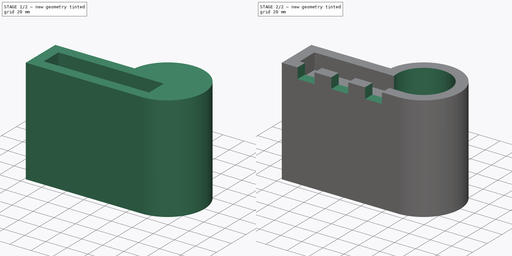
[diagram: build sequence overview — one tinted view per stage of 2, left to right]
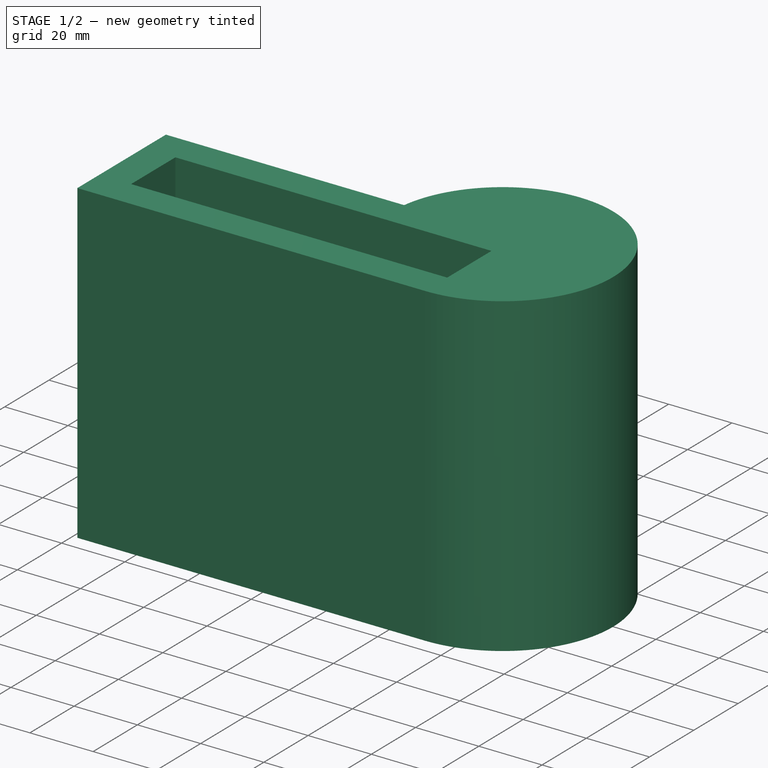
[diagram: stage 1 of 2 — iso view after this stage's code; geometry added in this stage tinted green]
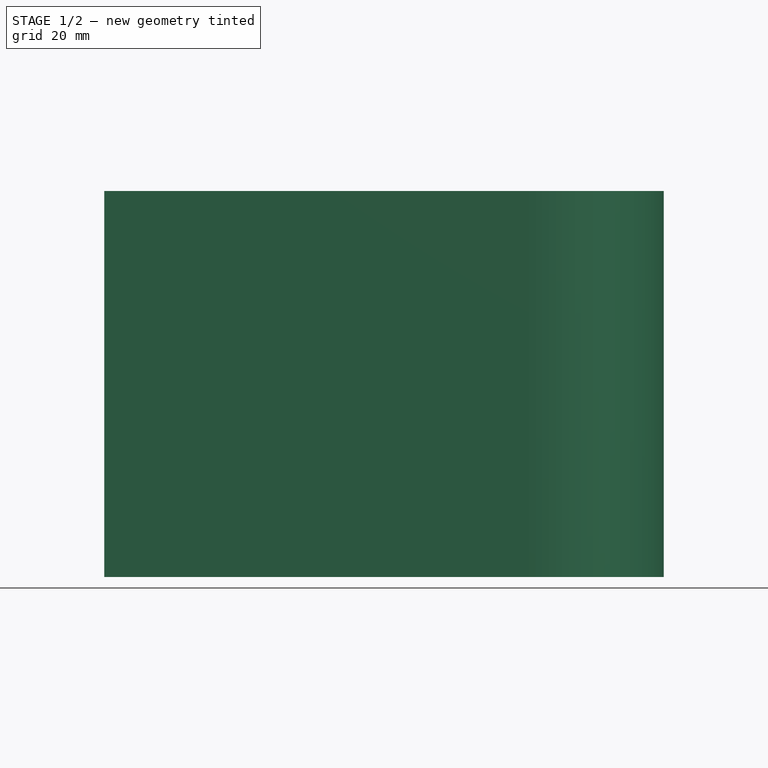
[diagram: stage 1 of 2 — front view after this stage's code; geometry added in this stage tinted green]
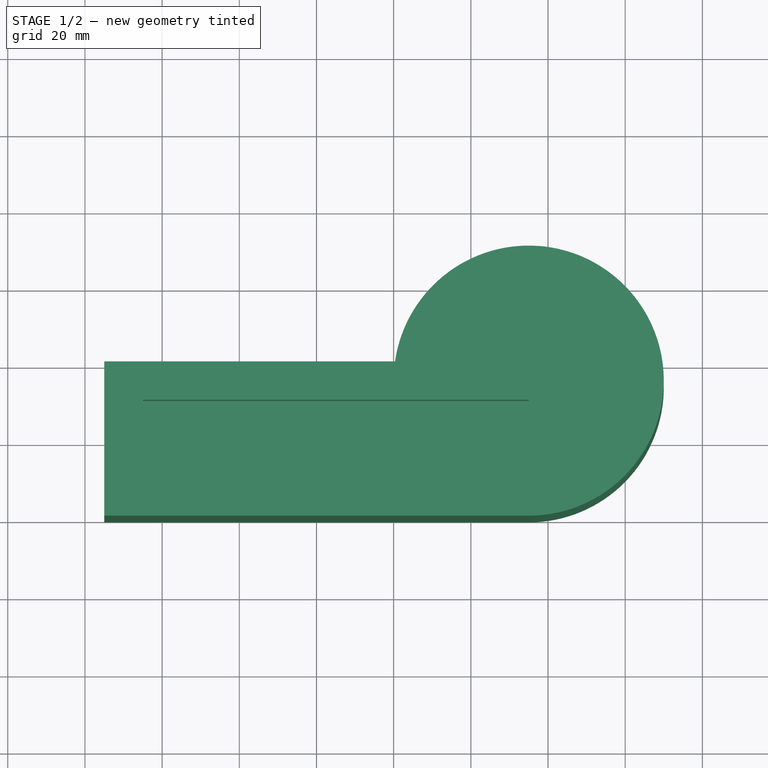
[diagram: stage 1 of 2 — top view after this stage's code; geometry added in this stage tinted green]
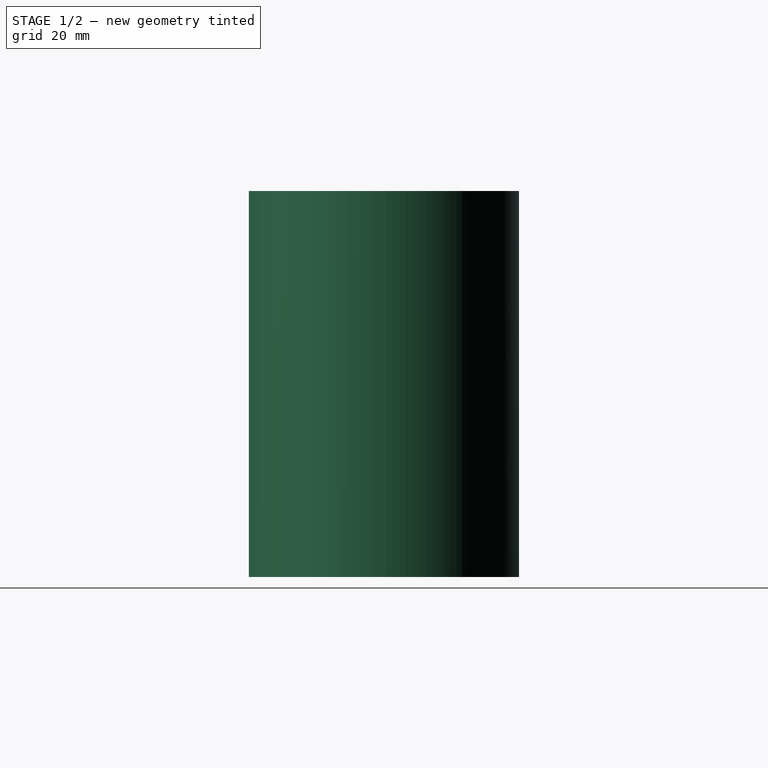
[diagram: stage 1 of 2 — right view after this stage's code; geometry added in this stage tinted green]
FCSTD DOCUMENT  (FreeCAD 1.0R39285 (Git))
Label: PartDesignExample
License: CreativeCommons Attribution
LicenseURL: http://creativecommons.org/licenses/by/4.0/
objects: Sketcher::SketchObject×4, PartDesign::Pocket×3, PartDesign::Pad×1, PartDesign::Body×1
note: 21 computed .brp shape members not serialized (recipe doc carries the construction recipe); baked Part::Feature solids carry a one-line shape summary decoded from their .brp

FEATURE [Sketcher::SketchObject] Sketch
  ArcFitTolerance = 0
  AttachmentSupport = -> [XY_Plane]
  FullyConstrained = true
  MakeInternals = false
  MapMode = 5
  sketch-geometry (4):
    g0: LineSegment StartX=20.359 StartY=20 StartZ=0 EndX=-55 EndY=20 EndZ=0
    g1: LineSegment StartX=-55 StartY=20 StartZ=0 EndX=-55 EndY=-20 EndZ=0
    g2: LineSegment StartX=-55 StartY=-20 StartZ=0 EndX=55 EndY=-20 EndZ=0
    g3: ArcOfCircle CenterX=55 CenterY=15 CenterZ=0 NormalX=0 NormalY=0 NormalZ=1 AngleXU=0 Radius=35 StartAngle=4.71239 EndAngle=9.28143
  constraints (12):
    c: Horizontal(g0)
    c: Coincident(g0,g1)
    c: Vertical(g1)
    c: Coincident(g1,g2)
    c: Horizontal(g2)
    c: Coincident(g3,g0)
    c: Coincident(g3,g2)
    c: Tangent(g3,g2)
    c: Symmetric(g0,g2,g-1)
    c: Radius(g3) = 35
    c: DistanceX(g2,g2) = 110
    c: DistanceY(g1,g1) = 40
FEATURE [PartDesign::Pad] Pad
  AllowMultiFace = false
  Direction = (0,0,1)
  Length = 100
  Length2 = 100
  Profile = -> Sketch
  Refine = true
  Reversed = true
  Suppressed = false
  Type = 0
FEATURE [Sketcher::SketchObject] Sketch001
  ArcFitTolerance = 0
  AttachmentSupport = -> [XY_Plane]
  FullyConstrained = true
  MakeInternals = false
  MapMode = 5
  sketch-geometry (4):
    g0: LineSegment StartX=-45 StartY=10 StartZ=0 EndX=55 EndY=10 EndZ=0
    g1: LineSegment StartX=55 StartY=10 StartZ=0 EndX=55 EndY=-10 EndZ=0
    g2: LineSegment StartX=55 StartY=-10 StartZ=0 EndX=-45 EndY=-10 EndZ=0
    g3: LineSegment StartX=-45 StartY=-10 StartZ=0 EndX=-45 EndY=10 EndZ=0
  constraints (11):
    c: Coincident(g0,g1)
    c: Coincident(g1,g2)
    c: Coincident(g2,g3)
    c: Coincident(g3,g0)
    c: Horizontal(g0)
    c: Horizontal(g2)
    c: Vertical(g1)
    c: Symmetric(g2,g0,g-1)
    c: DistanceY(g3,g3) = 20
    c: DistanceX(g0) = 55
    c: DistanceX(g0,g-1) = 45
FEATURE [Sketcher::SketchObject] Sketch003
  ArcFitTolerance = 0
  AttachmentSupport = -> [XY_Plane]
  ExternalGeometry = -> [Sketch]
  FullyConstrained = true
  MakeInternals = false
  MapMode = 5
  sketch-geometry (1):
    g0: Circle CenterX=55 CenterY=15 CenterZ=0 NormalX=0 NormalY=0 NormalZ=1 AngleXU=0 Radius=25
  constraints (2):
    c: Coincident(g0,g-3)
    c: Diameter(g0) = 50
FEATURE [PartDesign::Pocket] Pocket
  BaseFeature = -> Pad
  Direction = (0,0,-1)
  Length = 15
  Length2 = 100
  Profile = -> Sketch001
  Suppressed = false
  Type = 0
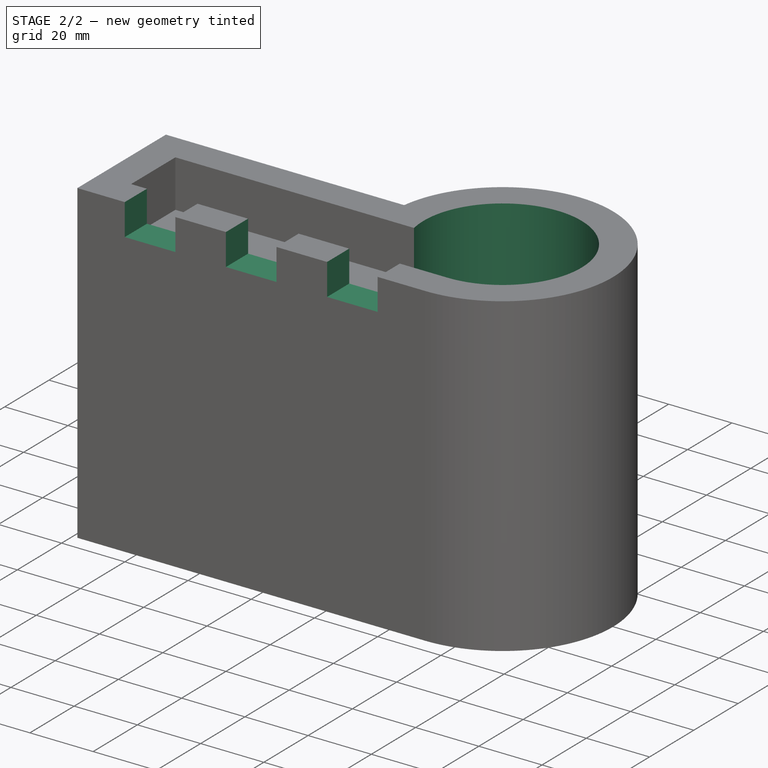
[diagram: stage 2 of 2 — iso view after this stage's code; geometry added in this stage tinted green]
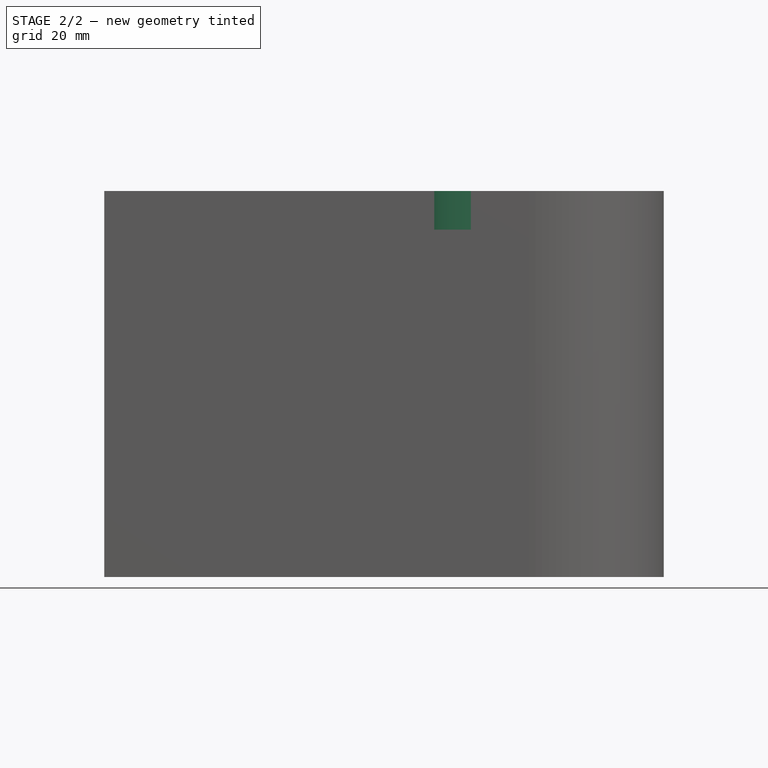
[diagram: stage 2 of 2 — front view after this stage's code; geometry added in this stage tinted green]
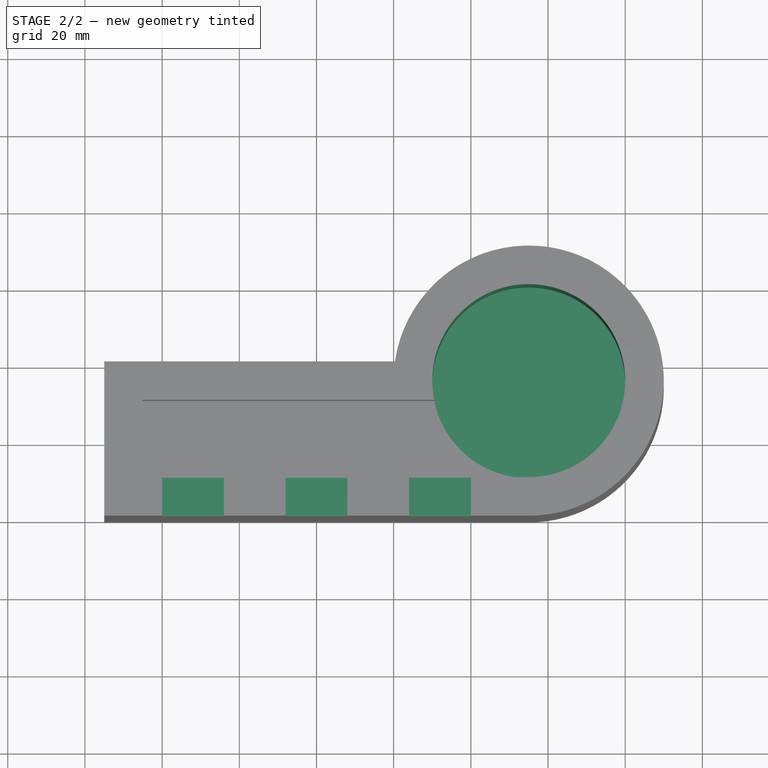
[diagram: stage 2 of 2 — top view after this stage's code; geometry added in this stage tinted green]
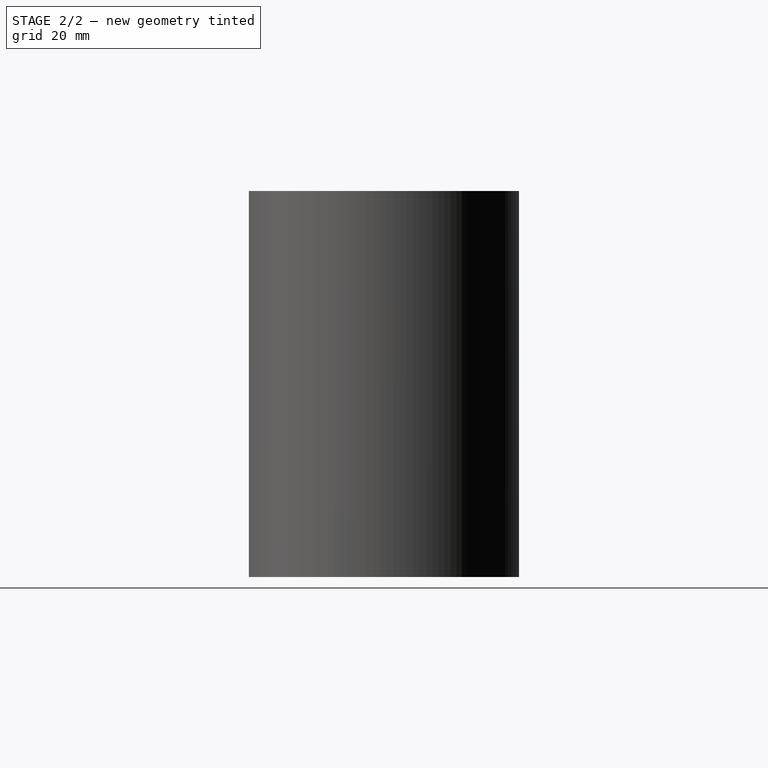
[diagram: stage 2 of 2 — right view after this stage's code; geometry added in this stage tinted green]
FEATURE [Sketcher::SketchObject] Sketch002
  ArcFitTolerance = 0
  AttachmentSupport = -> [XZ_Plane]
  FullyConstrained = true
  MakeInternals = false
  MapMode = 5
  Placement = pos=(0,0,0) rot=(1,0,0;1.5708rad)
  sketch-geometry (12):
    g0: LineSegment StartX=40 StartY=20 StartZ=0 EndX=-40 EndY=20 EndZ=0
    g1: LineSegment StartX=-40 StartY=20 StartZ=0 EndX=-40 EndY=-10 EndZ=0
    g2: LineSegment StartX=-40 StartY=-10 StartZ=0 EndX=-24 EndY=-10 EndZ=0
    g3: LineSegment StartX=-24 StartY=-10 StartZ=0 EndX=-24 EndY=10 EndZ=0
    g4: LineSegment StartX=-24 StartY=10 StartZ=0 EndX=-8 EndY=10 EndZ=0
    g5: LineSegment StartX=-8 StartY=10 StartZ=0 EndX=-8 EndY=-10 EndZ=0
    g6: LineSegment StartX=-8 StartY=-10 StartZ=0 EndX=8 EndY=-10 EndZ=0
    g7: LineSegment StartX=8 StartY=-10 StartZ=0 EndX=8 EndY=10 EndZ=0
    g8: LineSegment StartX=8 StartY=10 StartZ=0 EndX=24 EndY=10 EndZ=0
    g9: LineSegment StartX=24 StartY=10 StartZ=0 EndX=24 EndY=-10 EndZ=0
    g10: LineSegment StartX=24 StartY=-10 StartZ=0 EndX=40 EndY=-10 EndZ=0
    g11: LineSegment StartX=40 StartY=-10 StartZ=0 EndX=40 EndY=20 EndZ=0
  constraints (32):
    c: Coincident(g0,g1)
    c: Vertical(g1)
    c: Coincident(g1,g2)
    c: Coincident(g2,g3)
    c: Vertical(g3)
    c: Coincident(g3,g4)
    c: Horizontal(g4)
    c: Coincident(g4,g5)
    c: Vertical(g5)
    c: Coincident(g5,g6)
    c: Horizontal(g6)
    c: Coincident(g6,g7)
    c: Vertical(g7)
    c: Coincident(g7,g8)
    c: Coincident(g8,g9)
    c: Vertical(g9)
    c: Coincident(g9,g10)
    c: Coincident(g10,g11)
    c: Coincident(g11,g0)
    c: Vertical(g11)
    c: Tangent(g4,g8)
    c: Tangent(g2,g6)
    c: Tangent(g6,g10)
    c: Equal(g2,g4)
    c: Equal(g4,g6)
    c: Equal(g6,g8)
    c: Equal(g8,g10)
    c: Symmetric(g0,g0,g-2)
    c: DistanceX(g0,g0) = 80
    c: DistanceY(g0) = 20
    c: DistanceY(g10,g-1) = 10
    c: DistanceY(g7) = 10
FEATURE [PartDesign::Pocket] Pocket001
  BaseFeature = -> Pocket
  Direction = (0,0,-1)
  Length = 50
  Length2 = 100
  Profile = -> Sketch003
  Suppressed = false
  Type = 0
FEATURE [PartDesign::Pocket] Pocket002
  BaseFeature = -> Pocket001
  Direction = (0,1,-2e-16)
  Length = 5
  Length2 = 100
  Profile = -> Sketch002
  Reversed = true
  Suppressed = false
  Type = 1
FEATURE [PartDesign::Body] Body
  AllowCompound = true
  Group = -> [Sketch,Pad,Sketch001,Sketch002,Sketch003,Pocket,Pocket001,Pocket002]
  Origin = -> Origin
  Tip = -> Pocket002
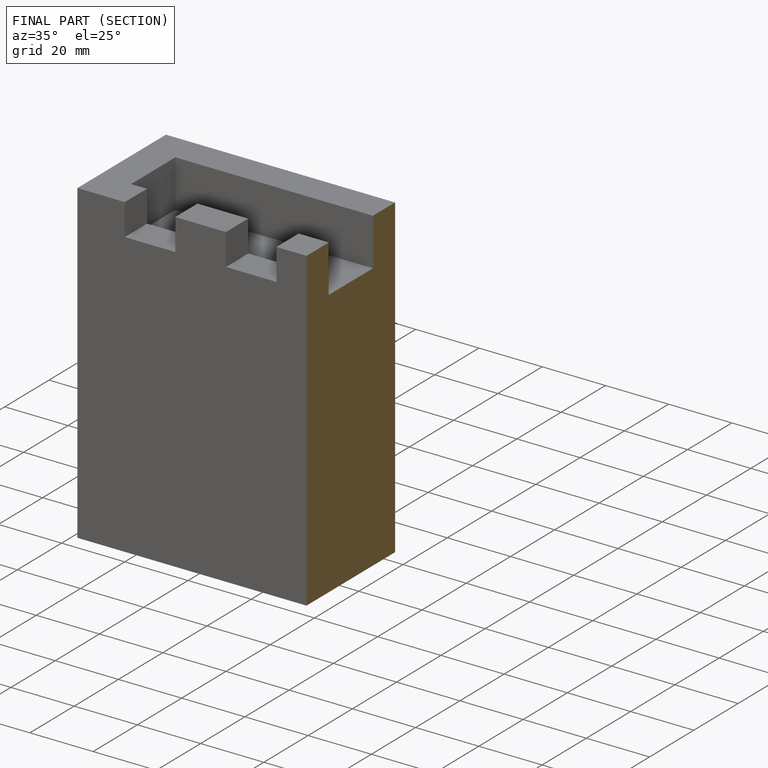
[diagram: finished part — half-section view (interior)]
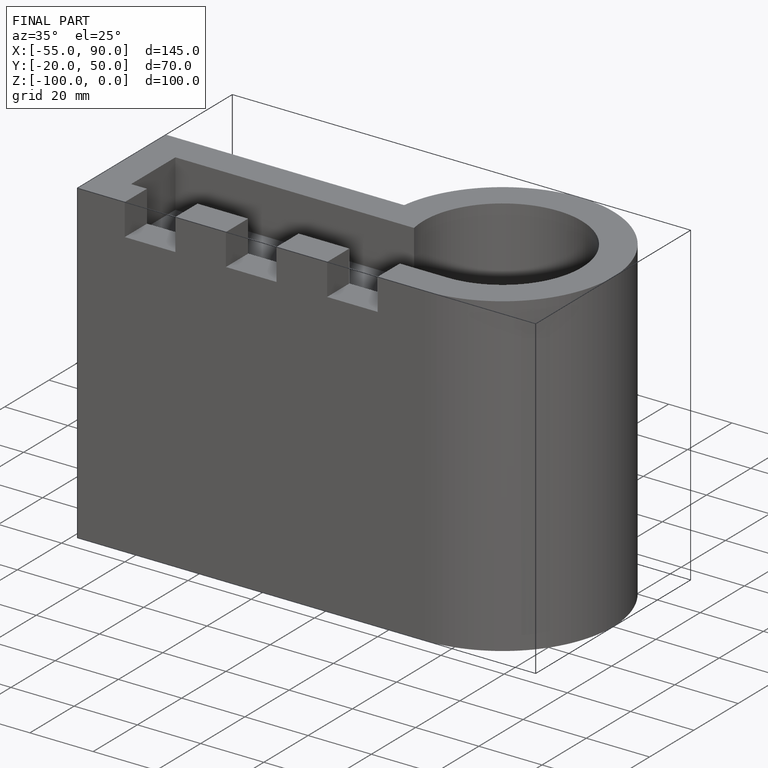
[diagram: finished part — iso view with bounding-box wireframe]
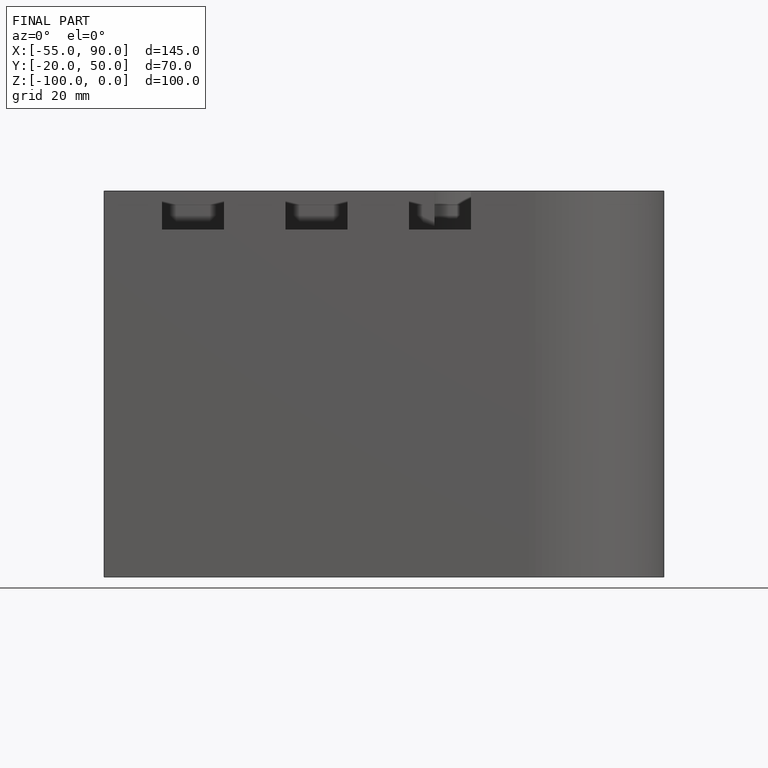
[diagram: finished part — front view with bounding-box wireframe]
